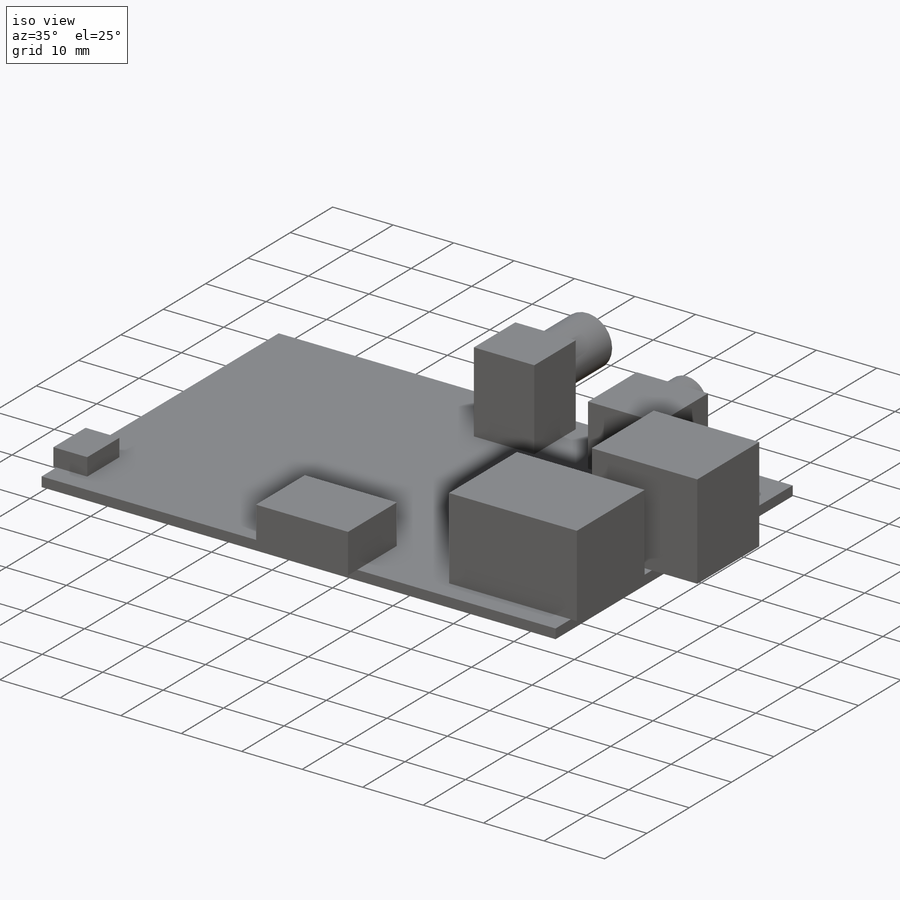
[diagram: iso view]
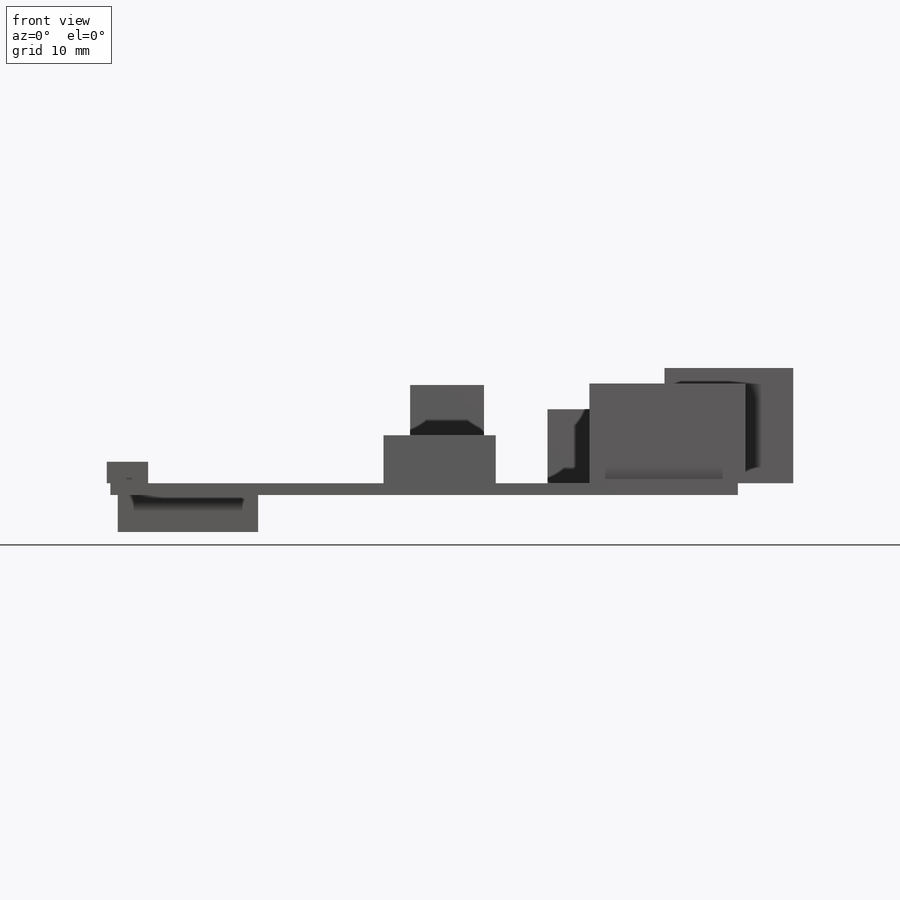
[diagram: front view]
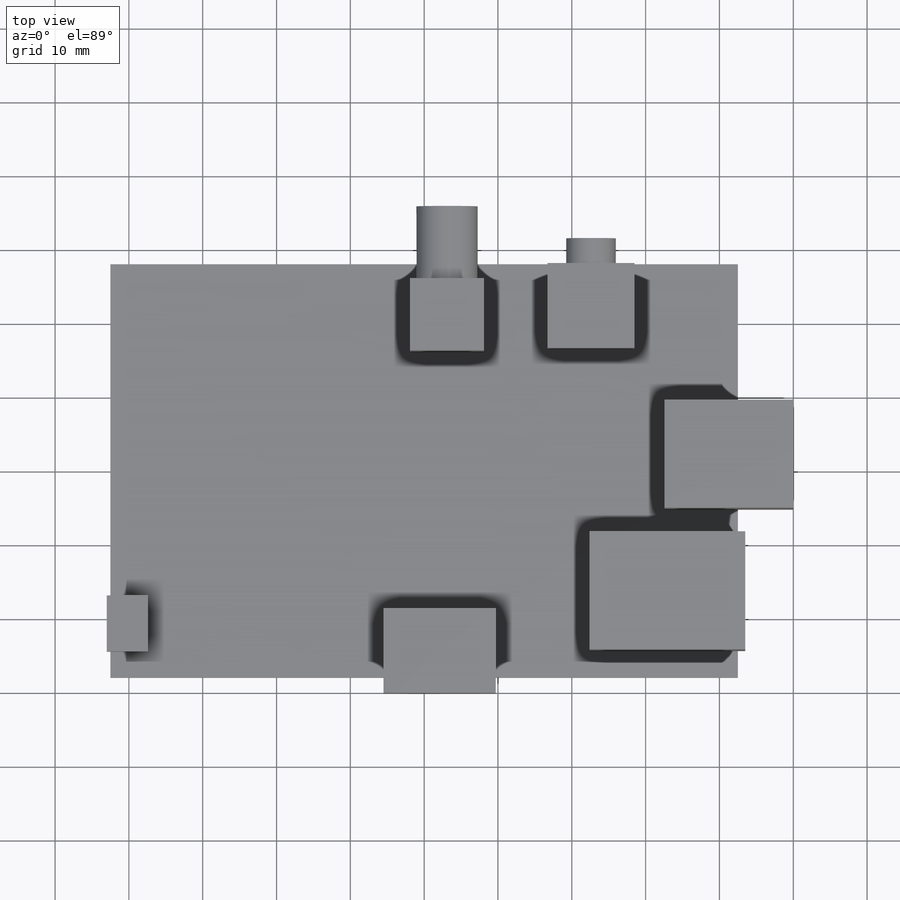
[diagram: top view]
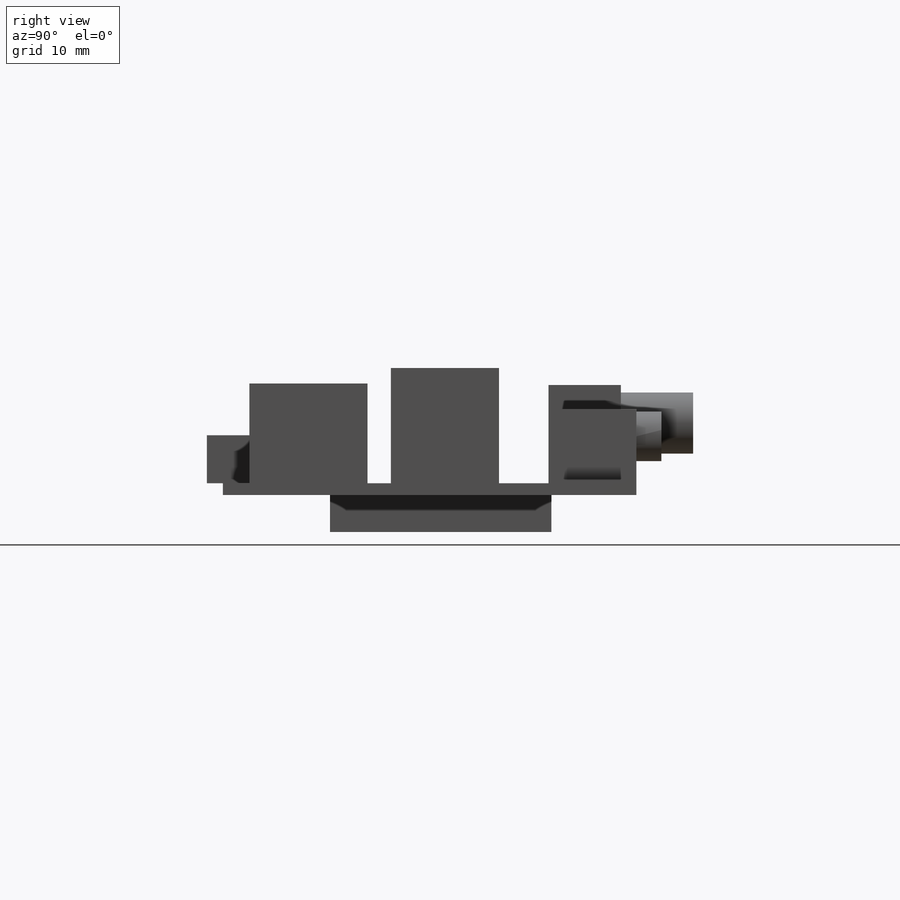
[diagram: right view]
SOLIDWORKS PART (.sldprt)
format: sldprt  version: not decoded by parser v0  size: 510,976 bytes
history: native  units: mm
features: sketch x12, extrude x10, cut_extrude x2, fillet x2, material x1 + 1 further entry (+12 scaffold rows collapsed)
feature tree (40):
  scaffold x12  (default folders/planes/origin — collapsed)
  material  "Material <not specified>"
  "Annotations"  RD1=56mm RD2=85mm RD3=24.275914mm
  sketch  "Sketch1"  dims[D1=56.0mm D2=85.0mm]
  extrude  "Boss-Extrude1"  Depth=1.6mm
  sketch  "Sketch5"  dims[D1=0.5mm D2=3.5mm D3=5.6mm D4=7.6mm]
  extrude  "Boss-Extrude4"  Depth=2.9mm
  sketch  "Sketch7"  dims[D1=37.0mm D2=11.5mm D3=15.2mm]
  extrude  "Boss-Extrude5"  Depth=6.5mm
  sketch  "Sketch8"  dims[D1=1.0mm D2=16.0mm D3=21.12mm]
  extrude  "Boss-Extrude6"  Depth=13.5mm
  sketch  "Sketch9"  dims[D1=14.65mm D2=17.45mm D3=7.5mm D4=18.6mm]
  extrude  "Boss-Extrude7"  Depth=15.6mm
  sketch  "Sketch10"  dims[D1=14.0mm D2=11.8mm D3=11.5mm]
  extrude  "Boss-Extrude8"  Depth=10.02mm
  sketch  "Sketch11"  dims[D1=6.7mm D2=3.0mm]
  extrude  "Boss-Extrude9"  Depth=3.4mm
  sketch  "Sketch12"  dims[D1=10.0mm D2=9.8mm D3=2.1mm D4=40.6mm]
  extrude  "Boss-Extrude10"  Depth=13.3mm
  sketch  "Sketch14"  dims[D1=8.3mm D2=4.0mm]
  extrude  "Boss-Extrude11"  Depth=9.8mm
  sketch  "Sketch15"  dims[D1=30.0mm D2=19.0mm D3=11.5mm D4=1.0mm]
  extrude  "Boss-Extrude12"  Depth=5mm
  sketch  "Sketch16"  dims[D1=4.5mm]
  cut_extrude  "Cut-Extrude1"  Depth=8mm
  fillet  "Fillet1"  Radius=1.5mm
  sketch  "Sketch17"  dims[D1=3.55mm]
  cut_extrude  "Cut-Extrude2"  Depth=8mm
  fillet  "Fillet2"  Radius=0.25mm
decode coverage: 26 of 26 modeling features carry decoded parameters; 1 rows unclassified (native names shown)
note: suppression state not decoded; provenance and decode notes live in map.json
